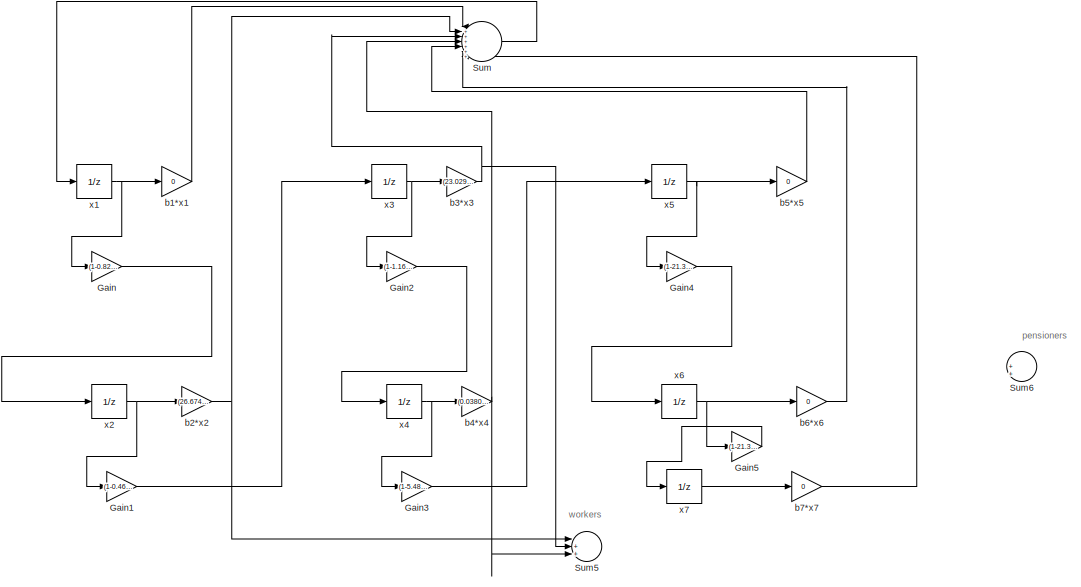
[diagram: root canvas - part 1/2, full width, top band]
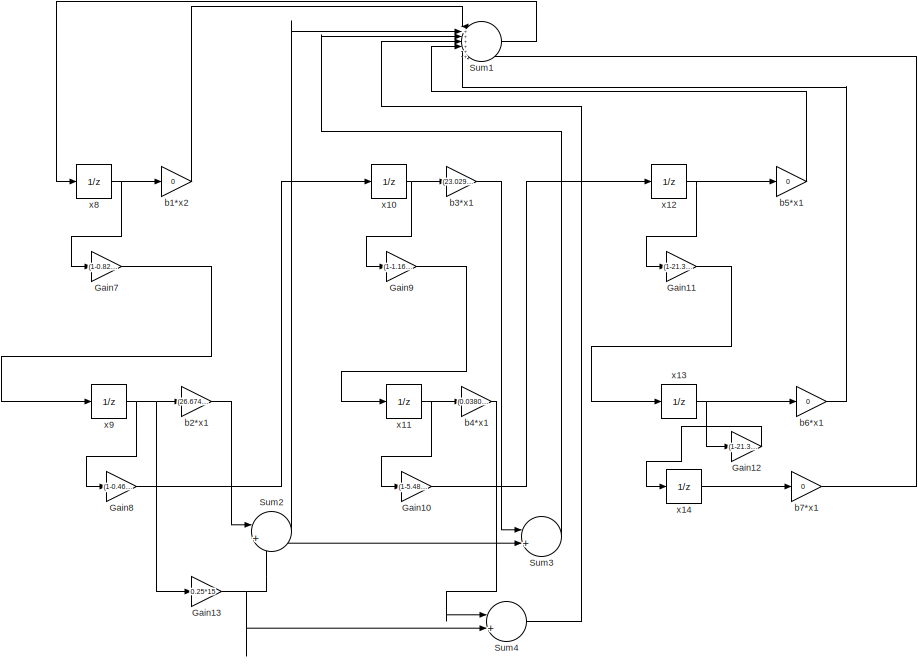
[diagram: root canvas - part 2/2, full width, bottom band]
MODEL practice3
KIND model
BLOCK [Gain] Gain
  Gain = (1-0.822164/1000)^15
  OutDataTypeStr = Inherit: Inherit via internal rule
  ParamDataTypeStr = Inherit: Inherit via internal rule
  SID = 3
  SaturateOnIntegerOverflow = off
BLOCK [Gain] Gain1
  Gain = (1-0.465078/1000)^15
  OutDataTypeStr = Inherit: Inherit via internal rule
  ParamDataTypeStr = Inherit: Inherit via internal rule
  SID = 5
  SaturateOnIntegerOverflow = off
BLOCK [Gain] Gain10
  Gain = (1-5.48891/1000)^15
  OutDataTypeStr = Inherit: Inherit via internal rule
  ParamDataTypeStr = Inherit: Inherit via internal rule
  SID = 47
  SaturateOnIntegerOverflow = off
BLOCK [Gain] Gain11
  Gain = (1-21.34731/1000)^15
  OutDataTypeStr = Inherit: Inherit via internal rule
  ParamDataTypeStr = Inherit: Inherit via internal rule
  SID = 48
  SaturateOnIntegerOverflow = off
BLOCK [Gain] Gain12
  Gain = (1-21.34731/1000)^15
  OutDataTypeStr = Inherit: Inherit via internal rule
  ParamDataTypeStr = Inherit: Inherit via internal rule
  SID = 49
  SaturateOnIntegerOverflow = off
BLOCK [Gain] Gain13
  Gain = 0.25*15
  OutDataTypeStr = Inherit: Inherit via internal rule
  ParamDataTypeStr = Inherit: Inherit via internal rule
  SID = 50
  SaturateOnIntegerOverflow = off
BLOCK [Gain] Gain2
  Gain = (1-1.16375/1000)^15
  OutDataTypeStr = Inherit: Inherit via internal rule
  ParamDataTypeStr = Inherit: Inherit via internal rule
  SID = 7
  SaturateOnIntegerOverflow = off
BLOCK [Gain] Gain3
  Gain = (1-5.48891/1000)^15
  OutDataTypeStr = Inherit: Inherit via internal rule
  ParamDataTypeStr = Inherit: Inherit via internal rule
  SID = 17
  SaturateOnIntegerOverflow = off
BLOCK [Gain] Gain4
  Gain = (1-21.34731/1000)^15
  OutDataTypeStr = Inherit: Inherit via internal rule
  ParamDataTypeStr = Inherit: Inherit via internal rule
  SID = 19
  SaturateOnIntegerOverflow = off
BLOCK [Gain] Gain5
  Gain = (1-21.34731/1000)^15
  OutDataTypeStr = Inherit: Inherit via internal rule
  ParamDataTypeStr = Inherit: Inherit via internal rule
  SID = 38
  SaturateOnIntegerOverflow = off
BLOCK [Gain] Gain7
  Gain = (1-0.822164/1000)^15
  OutDataTypeStr = Inherit: Inherit via internal rule
  ParamDataTypeStr = Inherit: Inherit via internal rule
  SID = 44
  SaturateOnIntegerOverflow = off
BLOCK [Gain] Gain8
  Gain = (1-0.465078/1000)^15
  OutDataTypeStr = Inherit: Inherit via internal rule
  ParamDataTypeStr = Inherit: Inherit via internal rule
  SID = 45
  SaturateOnIntegerOverflow = off
BLOCK [Gain] Gain9
  Gain = (1-1.16375/1000)^15
  OutDataTypeStr = Inherit: Inherit via internal rule
  ParamDataTypeStr = Inherit: Inherit via internal rule
  SID = 46
  SaturateOnIntegerOverflow = off
BLOCK [Sum] Sum
  IconShape = round
  InputSameDT = off
  Inputs = |+++++++
  OutDataTypeStr = Inherit: Inherit via internal rule
  Ports = [7, 1]
  SID = 25
  SaturateOnIntegerOverflow = off
BLOCK [Sum] Sum1
  IconShape = round
  InputSameDT = off
  Inputs = |+++++++
  OutDataTypeStr = Inherit: Inherit via internal rule
  Ports = [7, 1]
  SID = 51
  SaturateOnIntegerOverflow = off
BLOCK [Sum] Sum2
  IconShape = round
  InputSameDT = off
  Inputs = |++
  OutDataTypeStr = Inherit: Inherit via internal rule
  Ports = [2, 1]
  SID = 66
  SaturateOnIntegerOverflow = off
BLOCK [Sum] Sum3
  IconShape = round
  InputSameDT = off
  Inputs = |++
  OutDataTypeStr = Inherit: Inherit via internal rule
  Ports = [2, 1]
  SID = 68
  SaturateOnIntegerOverflow = off
BLOCK [Sum] Sum4
  IconShape = round
  InputSameDT = off
  Inputs = |++
  OutDataTypeStr = Inherit: Inherit via internal rule
  Ports = [2, 1]
  SID = 69
  SaturateOnIntegerOverflow = off
BLOCK [Sum] Sum5
  IconShape = round
  InputSameDT = off
  Inputs = |+++
  OutDataTypeStr = Inherit: Inherit via internal rule
  Ports = [3, 1]
  SID = 73
  SaturateOnIntegerOverflow = off
BLOCK [Sum] Sum6
  IconShape = round
  InputSameDT = off
  Inputs = |+++
  OutDataTypeStr = Inherit: Inherit via internal rule
  Ports = [3, 1]
  SID = 75
  SaturateOnIntegerOverflow = off
BLOCK [Gain] b1*x1
  Gain = 0
  OutDataTypeStr = Inherit: Inherit via internal rule
  ParamDataTypeStr = Inherit: Inherit via internal rule
  SID = 33
  SaturateOnIntegerOverflow = off
BLOCK [Gain] b1*x2
  Gain = 0
  OutDataTypeStr = Inherit: Inherit via internal rule
  ParamDataTypeStr = Inherit: Inherit via internal rule
  SID = 52
  SaturateOnIntegerOverflow = off
BLOCK [Gain] b2*x1
  Gain = (26.67422/1000)*15
  OutDataTypeStr = Inherit: Inherit via internal rule
  ParamDataTypeStr = Inherit: Inherit via internal rule
  SID = 53
  SaturateOnIntegerOverflow = off
BLOCK [Gain] b2*x2
  Gain = (26.67422/1000)*15
  OutDataTypeStr = Inherit: Inherit via internal rule
  ParamDataTypeStr = Inherit: Inherit via internal rule
  SID = 31
  SaturateOnIntegerOverflow = off
BLOCK [Gain] b3*x1
  Gain = (23.029775/1000)*15
  OutDataTypeStr = Inherit: Inherit via internal rule
  ParamDataTypeStr = Inherit: Inherit via internal rule
  SID = 54
  SaturateOnIntegerOverflow = off
BLOCK [Gain] b3*x3
  Gain = (23.029775/1000)*15
  OutDataTypeStr = Inherit: Inherit via internal rule
  ParamDataTypeStr = Inherit: Inherit via internal rule
  SID = 32
  SaturateOnIntegerOverflow = off
BLOCK [Gain] b4*x1
  Gain = (0.0380419/1000)*15
  OutDataTypeStr = Inherit: Inherit via internal rule
  ParamDataTypeStr = Inherit: Inherit via internal rule
  SID = 55
  SaturateOnIntegerOverflow = off
BLOCK [Gain] b4*x4
  Gain = (0.0380419/1000)*15
  OutDataTypeStr = Inherit: Inherit via internal rule
  ParamDataTypeStr = Inherit: Inherit via internal rule
  SID = 28
  SaturateOnIntegerOverflow = off
BLOCK [Gain] b5*x1
  Gain = 0
  OutDataTypeStr = Inherit: Inherit via internal rule
  ParamDataTypeStr = Inherit: Inherit via internal rule
  SID = 56
  SaturateOnIntegerOverflow = off
BLOCK [Gain] b5*x5
  Gain = 0
  OutDataTypeStr = Inherit: Inherit via internal rule
  ParamDataTypeStr = Inherit: Inherit via internal rule
  SID = 30
  SaturateOnIntegerOverflow = off
BLOCK [Gain] b6*x1
  Gain = 0
  OutDataTypeStr = Inherit: Inherit via internal rule
  ParamDataTypeStr = Inherit: Inherit via internal rule
  SID = 57
  SaturateOnIntegerOverflow = off
BLOCK [Gain] b6*x6
  Gain = 0
  OutDataTypeStr = Inherit: Inherit via internal rule
  ParamDataTypeStr = Inherit: Inherit via internal rule
  SID = 34
  SaturateOnIntegerOverflow = off
BLOCK [Gain] b7*x1
  Gain = 0
  OutDataTypeStr = Inherit: Inherit via internal rule
  ParamDataTypeStr = Inherit: Inherit via internal rule
  SID = 58
  SaturateOnIntegerOverflow = off
BLOCK [Gain] b7*x7
  Gain = 0
  OutDataTypeStr = Inherit: Inherit via internal rule
  ParamDataTypeStr = Inherit: Inherit via internal rule
  SID = 35
  SaturateOnIntegerOverflow = off
BLOCK [UnitDelay] x1
  InputProcessing = Elements as channels (sample based)
  SID = 4
  SampleTime = 15
  X0 = 1494370
BLOCK [UnitDelay] x10
  InputProcessing = Elements as channels (sample based)
  SID = 61
  SampleTime = 15
  X0 = 2474329
BLOCK [UnitDelay] x11
  InputProcessing = Elements as channels (sample based)
  SID = 62
  SampleTime = 15
  X0 = 2142379
BLOCK [UnitDelay] x12
  InputProcessing = Elements as channels (sample based)
  SID = 63
  SampleTime = 15
  X0 = 1626214
BLOCK [UnitDelay] x13
  InputProcessing = Elements as channels (sample based)
  SID = 64
  SampleTime = 15
  X0 = 665283
BLOCK [UnitDelay] x14
  InputProcessing = Elements as channels (sample based)
  SID = 65
  SampleTime = 15
  X0 = 665283
BLOCK [UnitDelay] x2
  InputProcessing = Elements as channels (sample based)
  SID = 6
  SampleTime = 15
  X0 = 2075652
BLOCK [UnitDelay] x3
  InputProcessing = Elements as channels (sample based)
  SID = 8
  SampleTime = 15
  X0 = 2474329
BLOCK [UnitDelay] x4
  InputProcessing = Elements as channels (sample based)
  SID = 18
  SampleTime = 15
  X0 = 2142379
BLOCK [UnitDelay] x5
  InputProcessing = Elements as channels (sample based)
  SID = 20
  SampleTime = 15
  X0 = 1626214
BLOCK [UnitDelay] x6
  InputProcessing = Elements as channels (sample based)
  SID = 22
  SampleTime = 15
  X0 = 665283
BLOCK [UnitDelay] x7
  InputProcessing = Elements as channels (sample based)
  SID = 37
  SampleTime = 15
  X0 = 665283
BLOCK [UnitDelay] x8
  InputProcessing = Elements as channels (sample based)
  SID = 59
  SampleTime = 15
  X0 = 1494370
BLOCK [UnitDelay] x9
  InputProcessing = Elements as channels (sample based)
  SID = 60
  SampleTime = 15
  X0 = 2075652
ANNOTATION (root): pensioners
ANNOTATION (root): workers
LINE Gain10:1 -> x12:1
LINE Gain11:1 -> x13:1
LINE Gain12:1 -> x14:1
NET Gain13:1 -> Sum2:2, Sum3:2, Sum4:2
LINE Gain1:1 -> x3:1
LINE Gain2:1 -> x4:1
LINE Gain3:1 -> x5:1
LINE Gain4:1 -> x6:1
LINE Gain5:1 -> x7:1
LINE Gain7:1 -> x9:1
LINE Gain8:1 -> x10:1
LINE Gain9:1 -> x11:1
LINE Gain:1 -> x2:1
LINE Sum1:1 -> x8:1
LINE Sum2:1 -> Sum1:2
LINE Sum3:1 -> Sum1:3
LINE Sum4:1 -> Sum1:4
LINE Sum:1 -> x1:1
LINE b1*x1:1 -> Sum:1
LINE b1*x2:1 -> Sum1:1
LINE b2*x1:1 -> Sum2:1
NET b2*x2:1 -> Sum5:1, Sum:2
LINE b3*x1:1 -> Sum3:1
NET b3*x3:1 -> Sum5:2, Sum:3
LINE b4*x1:1 -> Sum4:1
NET b4*x4:1 -> Sum5:3, Sum:4
LINE b5*x1:1 -> Sum1:5
LINE b5*x5:1 -> Sum:5
LINE b6*x1:1 -> Sum1:6
LINE b6*x6:1 -> Sum:6
LINE b7*x1:1 -> Sum1:7
LINE b7*x7:1 -> Sum:7
NET x10:1 -> Gain9:1, b3*x1:1
NET x11:1 -> Gain10:1, b4*x1:1
NET x12:1 -> Gain11:1, b5*x1:1
NET x13:1 -> Gain12:1, b6*x1:1
LINE x14:1 -> b7*x1:1
NET x1:1 -> Gain:1, b1*x1:1
NET x2:1 -> Gain1:1, b2*x2:1
NET x3:1 -> Gain2:1, b3*x3:1
NET x4:1 -> Gain3:1, b4*x4:1
NET x5:1 -> Gain4:1, b5*x5:1
NET x6:1 -> Gain5:1, b6*x6:1
LINE x7:1 -> b7*x7:1
NET x8:1 -> Gain7:1, b1*x2:1
NET x9:1 -> Gain13:1, Gain8:1, b2*x1:1
note: NET lines group one-source signal fan-out (src -> all destinations, sorted); 1:1 wires keep LINE
